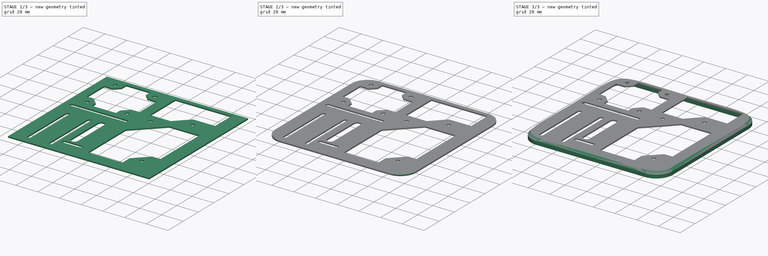
[diagram: build sequence overview — one tinted view per stage of 3, left to right]
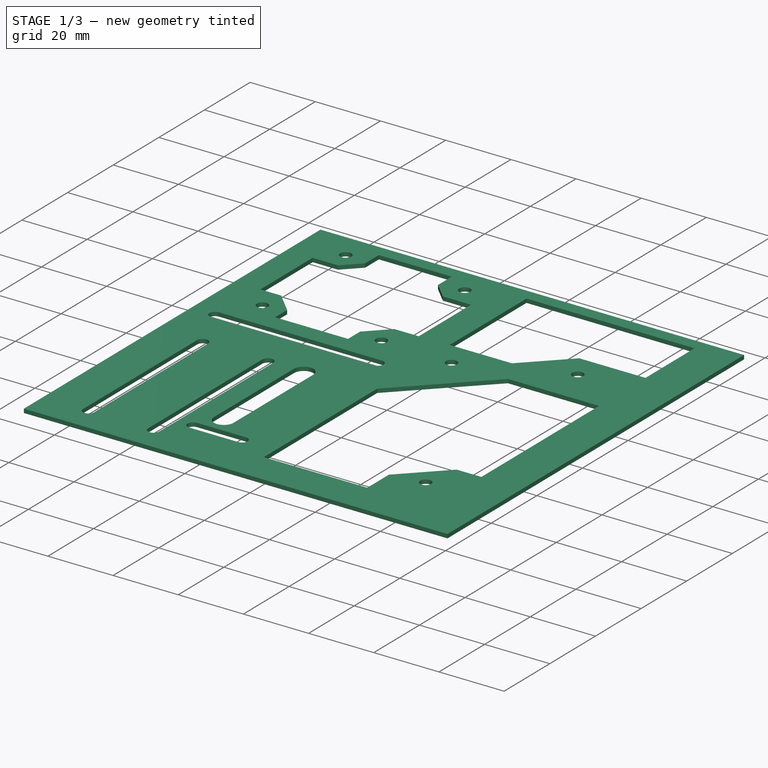
[diagram: stage 1 of 3 — iso view after this stage's code; geometry added in this stage tinted green]
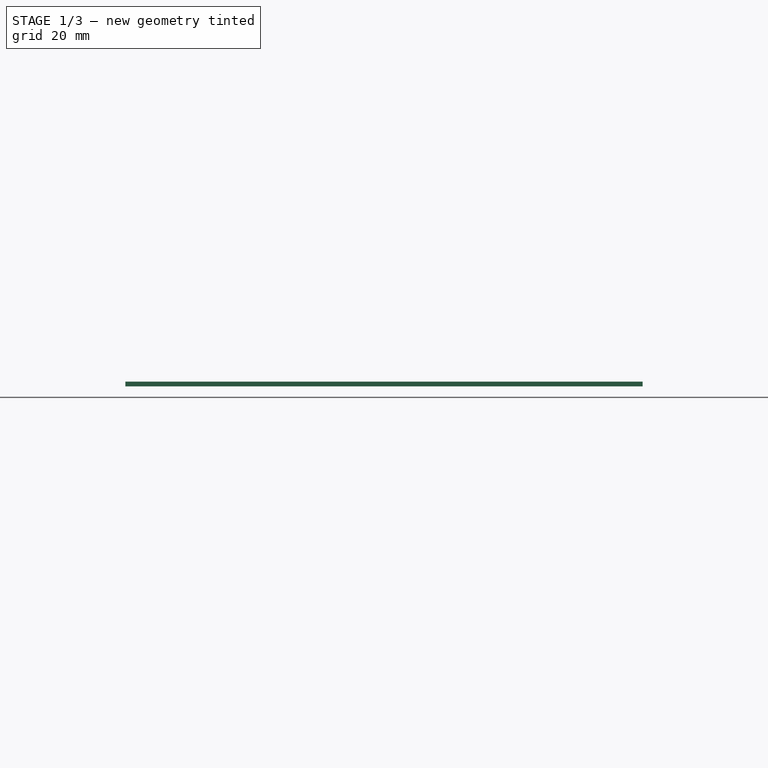
[diagram: stage 1 of 3 — front view after this stage's code; geometry added in this stage tinted green]
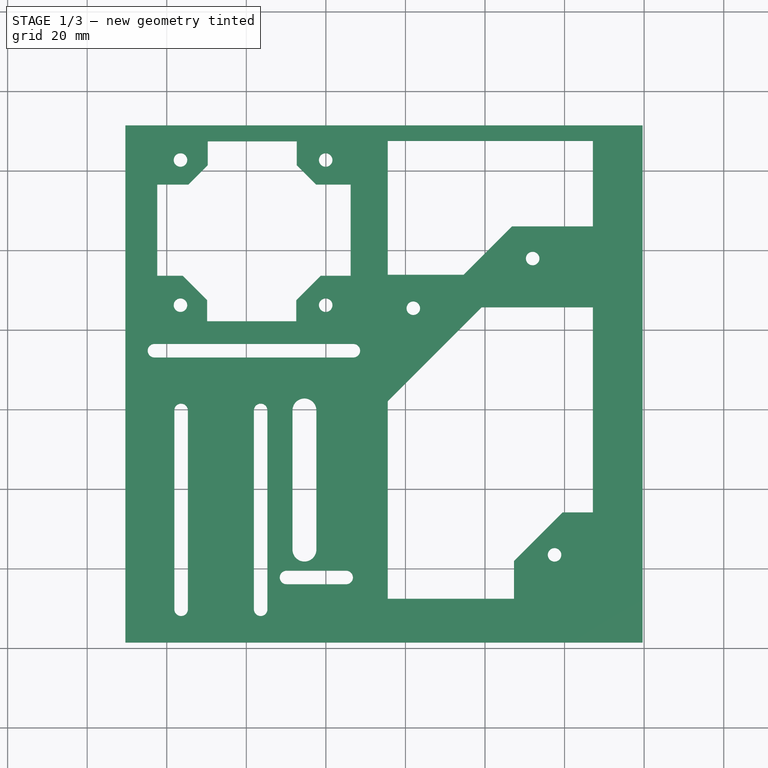
[diagram: stage 1 of 3 — top view after this stage's code; geometry added in this stage tinted green]
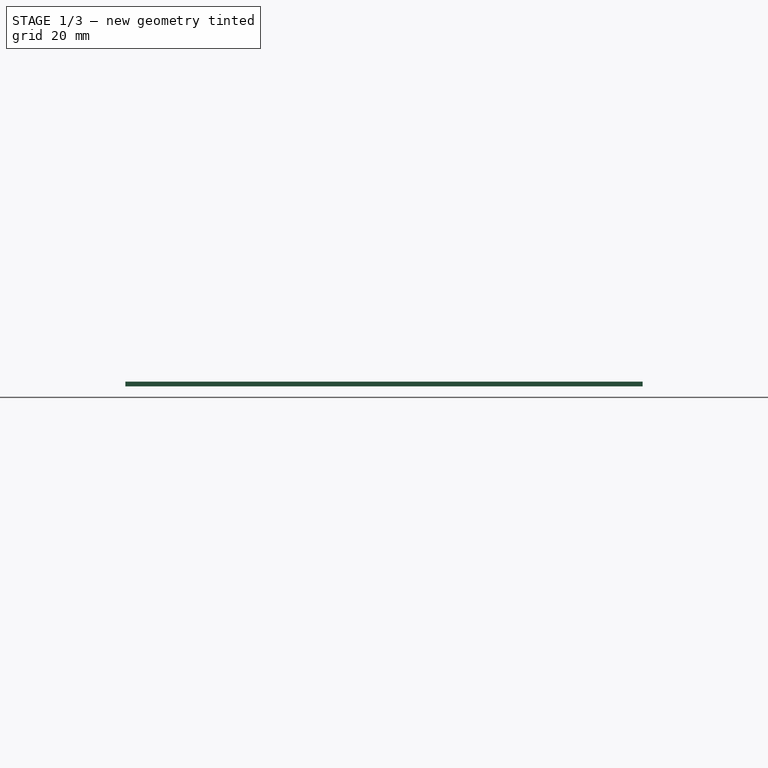
[diagram: stage 1 of 3 — right view after this stage's code; geometry added in this stage tinted green]
FCSTD DOCUMENT  (FreeCAD 0.18R4 (GitTag))
Label: pruebas_motor2
License: All rights reserved
LicenseURL: http://en.wikipedia.org/wiki/All_rights_reserved
objects: Sketcher::SketchObject×3, PartDesign::Pad×2, PartDesign::Pocket×1, PartDesign::Fillet×1, PartDesign::Chamfer×1, PartDesign::Body×1
note: 12 computed .brp shape members not serialized (recipe doc carries the construction recipe); baked Part::Feature solids carry a one-line shape summary decoded from their .brp

FEATURE [Sketcher::SketchObject] Sketch
  MapMode = 5
  Support = -> [XY_Plane]
  sketch-geometry (39):
    g0: LineSegment StartX=-50.3914 StartY=-78.5687 StartZ=0 EndX=79.6086 EndY=-78.5687 EndZ=0
    g1: LineSegment StartX=79.6086 StartY=-78.5687 StartZ=0 EndX=79.6086 EndY=51.4313 EndZ=0
    g2: LineSegment StartX=79.6086 StartY=51.4313 StartZ=0 EndX=-50.3914 EndY=51.4313 EndZ=0
    g3: LineSegment StartX=-50.3914 StartY=51.4313 StartZ=0 EndX=-50.3914 EndY=-78.5687 EndZ=0
    g4: LineSegment [constr] StartX=18.4771 StartY=46.9709 StartZ=0 EndX=73.4771 EndY=46.9709 EndZ=0
    g5: LineSegment [constr] StartX=73.4771 StartY=46.9709 StartZ=0 EndX=73.4771 EndY=-78.0291 EndZ=0
    g6: LineSegment [constr] StartX=73.4771 StartY=-78.0291 StartZ=0 EndX=18.4771 EndY=-78.0291 EndZ=0
    g7: LineSegment [constr] StartX=18.4771 StartY=-78.0291 StartZ=0 EndX=18.4771 EndY=46.9709 EndZ=0
    g8: LineSegment [constr] StartX=-36.5503 StartY=42.7361 StartZ=0 EndX=-0.0503191 EndY=42.7361 EndZ=0
    g9: LineSegment [constr] StartX=-0.0503191 StartY=42.7361 StartZ=0 EndX=-0.0503191 EndY=6.23607 EndZ=0
    g10: LineSegment [constr] StartX=-0.0503191 StartY=6.23607 StartZ=0 EndX=-36.5503 EndY=6.23607 EndZ=0
    g11: LineSegment [constr] StartX=-36.5503 StartY=6.23607 StartZ=0 EndX=-36.5503 EndY=42.7361 EndZ=0
    g12: Circle CenterX=-36.5503 CenterY=42.7361 CenterZ=0 NormalX=0 NormalY=0 NormalZ=1 AngleXU=0 Radius=1.7
    g13: Circle CenterX=-0.0503191 CenterY=6.23607 CenterZ=0 NormalX=0 NormalY=0 NormalZ=1 AngleXU=0 Radius=1.7
    g14: Circle CenterX=-0.0503191 CenterY=42.7361 CenterZ=0 NormalX=0 NormalY=0 NormalZ=1 AngleXU=0 Radius=1.7
    g15: Circle CenterX=-36.5503 CenterY=6.23607 CenterZ=0 NormalX=0 NormalY=0 NormalZ=1 AngleXU=0 Radius=1.7
    g16: Circle CenterX=21.9771 CenterY=5.47094 CenterZ=0 NormalX=0 NormalY=0 NormalZ=1 AngleXU=0 Radius=1.7
    g17: Circle CenterX=57.4771 CenterY=-56.5291 CenterZ=0 NormalX=0 NormalY=0 NormalZ=1 AngleXU=0 Radius=1.7
    g18: Circle CenterX=51.9771 CenterY=17.9709 CenterZ=0 NormalX=0 NormalY=0 NormalZ=1 AngleXU=0 Radius=1.7
    g19: ArcOfCircle CenterX=-5.39136 CenterY=-55.2085 CenterZ=0 NormalX=0 NormalY=0 NormalZ=1 AngleXU=0 Radius=3 StartAngle=3.14159 EndAngle=6.28319
    g20: LineSegment StartX=-8.39136 StartY=-20.2085 StartZ=0 EndX=-8.39136 EndY=-55.2085 EndZ=0
    g21: LineSegment StartX=-2.39136 StartY=-20.2085 StartZ=0 EndX=-2.39136 EndY=-55.2085 EndZ=0
    g22: ArcOfCircle CenterX=-9.89136 CenterY=-62.2085 CenterZ=0 NormalX=0 NormalY=0 NormalZ=1 AngleXU=0 Radius=1.7 StartAngle=1.5708 EndAngle=4.71239
    g23: ArcOfCircle CenterX=5.10864 CenterY=-62.2085 CenterZ=0 NormalX=0 NormalY=0 NormalZ=1 AngleXU=0 Radius=1.7 StartAngle=4.71239 EndAngle=7.85398
    g24: LineSegment StartX=-9.89136 StartY=-63.9085 StartZ=0 EndX=5.10864 EndY=-63.9085 EndZ=0
    g25: LineSegment StartX=-9.89136 StartY=-60.5085 StartZ=0 EndX=5.10864 EndY=-60.5085 EndZ=0
    g26: ArcOfCircle CenterX=-36.3914 CenterY=-20.2085 CenterZ=0 NormalX=0 NormalY=0 NormalZ=1 AngleXU=0 Radius=1.7 StartAngle=4e-16 EndAngle=3.14159
    g27: ArcOfCircle CenterX=-36.3914 CenterY=-70.2085 CenterZ=0 NormalX=0 NormalY=0 NormalZ=1 AngleXU=0 Radius=1.7 StartAngle=3.14159 EndAngle=6.28319
    g28: LineSegment StartX=-38.0914 StartY=-20.2085 StartZ=0 EndX=-38.0914 EndY=-70.2085 EndZ=0
    g29: LineSegment StartX=-34.6914 StartY=-20.2085 StartZ=0 EndX=-34.6914 EndY=-70.2085 EndZ=0
    g30: ArcOfCircle CenterX=-43.0914 CenterY=-5.20845 CenterZ=0 NormalX=0 NormalY=0 NormalZ=1 AngleXU=0 Radius=1.7 StartAngle=1.5708 EndAngle=4.71239
    g31: ArcOfCircle CenterX=6.90864 CenterY=-5.20845 CenterZ=0 NormalX=0 NormalY=0 NormalZ=1 AngleXU=0 Radius=1.7 StartAngle=4.71239 EndAngle=7.85398
    g32: LineSegment StartX=-43.0914 StartY=-6.90845 StartZ=0 EndX=6.90864 EndY=-6.90845 EndZ=0
    g33: LineSegment StartX=-43.0914 StartY=-3.50845 StartZ=0 EndX=6.90864 EndY=-3.50845 EndZ=0
    g34: ArcOfCircle CenterX=-5.39136 CenterY=-20.2085 CenterZ=0 NormalX=0 NormalY=0 NormalZ=1 AngleXU=0 Radius=3 StartAngle=-9e-16 EndAngle=3.14159
    g35: ArcOfCircle CenterX=-16.3914 CenterY=-20.2085 CenterZ=0 NormalX=0 NormalY=0 NormalZ=1 AngleXU=0 Radius=1.7 StartAngle=1e-15 EndAngle=3.14159
    g36: ArcOfCircle CenterX=-16.3914 CenterY=-70.2085 CenterZ=0 NormalX=0 NormalY=0 NormalZ=1 AngleXU=0 Radius=1.7 StartAngle=3.14159 EndAngle=6.28319
    g37: LineSegment StartX=-18.0914 StartY=-20.2085 StartZ=0 EndX=-18.0914 EndY=-70.2085 EndZ=0
    g38: LineSegment StartX=-14.6914 StartY=-20.2085 StartZ=0 EndX=-14.6914 EndY=-70.2085 EndZ=0
  constraints (94):
    c: Coincident(g0,g1)
    c: Coincident(g1,g2)
    c: Coincident(g2,g3)
    c: Coincident(g3,g0)
    c: Horizontal(g0)
    c: Horizontal(g2)
    c: Vertical(g1)
    c: Vertical(g3)
    c: Coincident(g4,g5)
    c: Coincident(g5,g6)
    c: Coincident(g6,g7)
    c: Coincident(g7,g4)
    c: Horizontal(g4)
    c: Horizontal(g6)
    c: Vertical(g5)
    c: Vertical(g7)
    c: Coincident(g8,g9)
    c: Coincident(g9,g10)
    c: Coincident(g10,g11)
    c: Coincident(g11,g8)
    c: Horizontal(g8)
    c: Horizontal(g10)
    c: Vertical(g9)
    c: Vertical(g11)
    c: Distance(g5) = 125
    c: Distance(g6) = 55
    c: Distance(g11) = 36.5
    c: Distance(g8) = 36.5
    c: Tangent(g20,g19) = -1.5708
    c: Tangent(g21,g19) = 1.5708
    c: Vertical(g20)
    c: Tangent(g22,g25) = 1.5708
    c: Tangent(g22,g24) = -1.5708
    c: Tangent(g24,g23) = -1.5708
    c: Tangent(g25,g23) = 1.5708
    c: Horizontal(g24)
    c: Equal(g22,g23)
    c: Tangent(g26,g29) = 1.5708
    c: Tangent(g26,g28) = -1.5708
    c: Tangent(g28,g27) = -1.5708
    c: Tangent(g29,g27) = 1.5708
    c: Vertical(g28)
    c: Equal(g26,g27)
    c: Tangent(g30,g33) = 1.5708
    c: Tangent(g30,g32) = -1.5708
    c: Tangent(g32,g31) = -1.5708
    c: Tangent(g33,g31) = 1.5708
    c: Horizontal(g32)
    c: Equal(g30,g31)
    c: Radius(g31) = 1.7
    c: Equal(g26,g23)
    c: Equal(g23,g17)
    c: Equal(g17,g18)
    c: Equal(g18,g16)
    c: Equal(g16,g13)
    c: Equal(g13,g15)
    c: Equal(g15,g14)
    c: Equal(g14,g12)
    c: Coincident(g15,g10)
    c: Coincident(g13,g9)
    c: Coincident(g14,g8)
    c: Coincident(g12,g8)
    c: Tangent(g20,g34) = -1.5708
    c: Tangent(g21,g34) = 1.5708
    c: Radius(g34) = 3
    c: Radius(g26) = 1.7
    c: DistanceX(g27,g19) = 31
    c: Horizontal(g34,g26)
    c: Tangent(g35,g38) = 1.5708
    c: Tangent(g35,g37) = -1.5708
    c: Tangent(g37,g36) = -1.5708
    c: Tangent(g38,g36) = 1.5708
    c: Equal(g35,g36)
    c: Equal(g26,g35) = 1.7
    c: Horizontal(g35,g26)
    c: Equal(g37,g29)
    c: Distance(g35,g26) = 20
    c: Symmetric(g22,g23,g21)
    c: DistanceY(g22,g19) = 7
    c: Distance(g37) = 50
    c: Distance(g21) = 35
    c: Distance(g25) = 15
    c: Distance(g32) = 50
    c: Symmetric(g31,g30,g37)
    c: DistanceY(g34,g31) = 15
    c: Distance(g1) = 130
    c: Distance(g2) = 130
    c: DistanceX(g18,g4) = 21.5
    c: DistanceY(g18,g4) = 29
    c: DistanceY(g16,g4) = 41.5
    c: DistanceX(g4,g16) = 3.5
    c: DistanceX(g17,g5) = 16
    c: DistanceY(g5,g17) = 21.5
    c: DistanceX(g0,g27) = 14
FEATURE [PartDesign::Pad] Pad
  Length = 1.2
  Length2 = 100
  Profile = -> Sketch
  Type = 0
FEATURE [Sketcher::SketchObject] Sketch001
  MapMode = 5
  Placement = pos=(0,0,1.2) rot=(0,0,1;0rad)
  Support = -> [Pad]
  sketch-geometry (30):
    g0: LineSegment StartX=15.5436 StartY=-17.8737 StartZ=0 EndX=15.5436 EndY=-67.564 EndZ=0
    g1: LineSegment StartX=15.5436 StartY=-67.564 StartZ=0 EndX=47.2911 EndY=-67.564 EndZ=0
    g2: LineSegment StartX=47.2911 StartY=-67.564 StartZ=0 EndX=47.2911 EndY=-58.0761 EndZ=0
    g3: LineSegment StartX=47.2911 StartY=-58.0761 StartZ=0 EndX=59.5096 EndY=-45.8576 EndZ=0
    g4: LineSegment StartX=67.1067 StartY=-45.8576 StartZ=0 EndX=67.1067 EndY=5.71053 EndZ=0
    g5: LineSegment StartX=67.1067 StartY=5.71053 StartZ=0 EndX=39.1278 EndY=5.71053 EndZ=0
    g6: LineSegment StartX=39.1278 StartY=5.71053 StartZ=0 EndX=15.5436 EndY=-17.8737 EndZ=0
    g7: LineSegment StartX=15.5436 StartY=13.8936 StartZ=0 EndX=34.6041 EndY=13.8936 EndZ=0
    g8: LineSegment StartX=34.6041 StartY=13.8936 StartZ=0 EndX=46.7648 EndY=26.0544 EndZ=0
    g9: LineSegment StartX=46.7648 StartY=26.0544 StartZ=0 EndX=67.1067 EndY=26.0544 EndZ=0
    g10: LineSegment StartX=67.1067 StartY=26.0544 StartZ=0 EndX=67.1067 EndY=47.5405 EndZ=0
    g11: LineSegment StartX=67.1067 StartY=47.5405 StartZ=0 EndX=15.5436 EndY=47.5405 EndZ=0
    g12: LineSegment StartX=15.5436 StartY=47.5405 StartZ=0 EndX=15.5436 EndY=13.8936 EndZ=0
    g13: LineSegment StartX=-42.3794 StartY=13.6448 StartZ=0 EndX=-36.019 EndY=13.6448 EndZ=0
    g14: LineSegment StartX=-36.019 StartY=13.6448 StartZ=0 EndX=-29.8522 EndY=7.47797 EndZ=0
    g15: LineSegment StartX=-29.8522 StartY=7.47797 StartZ=0 EndX=-29.8522 EndY=2.18866 EndZ=0
    g16: LineSegment StartX=-29.8522 StartY=2.18866 StartZ=0 EndX=-7.45365 EndY=2.18866 EndZ=0
    g17: LineSegment StartX=-7.45365 StartY=2.18866 StartZ=0 EndX=-7.45365 EndY=7.47797 EndZ=0
    g18: LineSegment StartX=-7.45365 StartY=7.47797 StartZ=0 EndX=-1.28683 EndY=13.6448 EndZ=0
    g19: LineSegment StartX=-1.28683 StartY=13.6448 StartZ=0 EndX=6.22902 EndY=13.6448 EndZ=0
    g20: LineSegment StartX=6.22902 StartY=13.6448 StartZ=0 EndX=6.22902 EndY=36.5553 EndZ=0
    g21: LineSegment StartX=6.22902 StartY=36.5553 StartZ=0 EndX=-2.4438 EndY=36.5553 EndZ=0
    g22: LineSegment StartX=-2.4438 StartY=36.5553 StartZ=0 EndX=-7.32422 EndY=41.4357 EndZ=0
    g23: LineSegment StartX=-7.32422 StartY=41.4357 StartZ=0 EndX=-7.32422 EndY=47.4482 EndZ=0
    g24: LineSegment StartX=-7.32422 StartY=47.4482 StartZ=0 EndX=-29.6958 EndY=47.4482 EndZ=0
    g25: LineSegment StartX=-29.6958 StartY=47.4482 StartZ=0 EndX=-29.6958 EndY=41.4357 EndZ=0
    g26: LineSegment StartX=-29.6958 StartY=41.4357 StartZ=0 EndX=-34.5762 EndY=36.5553 EndZ=0
    g27: LineSegment StartX=-34.5762 StartY=36.5553 StartZ=0 EndX=-42.3794 EndY=36.5553 EndZ=0
    g28: LineSegment StartX=-42.3794 StartY=36.5553 StartZ=0 EndX=-42.3794 EndY=13.6448 EndZ=0
    g29: LineSegment StartX=59.5096 StartY=-45.8576 StartZ=0 EndX=67.1067 EndY=-45.8576 EndZ=0
  constraints (66):
    c: Coincident(g0,g1)
    c: Coincident(g1,g2)
    c: Coincident(g2,g3)
    c: Coincident(g4,g5)
    c: Coincident(g5,g6)
    c: Coincident(g6,g0)
    c: Coincident(g7,g8)
    c: Coincident(g8,g9)
    c: Coincident(g9,g10)
    c: Coincident(g10,g11)
    c: Coincident(g11,g12)
    c: Coincident(g12,g7)
    c: Vertical(g12)
    c: Vertical(g0)
    c: Vertical(g4)
    c: Vertical(g2)
    c: Vertical(g10)
    c: Horizontal(g11)
    c: Horizontal(g9)
    c: Horizontal(g5)
    c: Horizontal(g1)
    c: Parallel(g8,g6)
    c: Parallel(g6,g3)
    c: Angle(g-1,g6) = 0.785398
    c: Horizontal(g7)
    c: Vertical(g0,g7)
    c: Vertical(g4,g9)
    c: Coincident(g13,g14)
    c: Coincident(g14,g15)
    c: Coincident(g15,g16)
    c: Coincident(g16,g17)
    c: Coincident(g17,g18)
    c: Coincident(g18,g19)
    c: Coincident(g19,g20)
    c: Coincident(g20,g21)
    c: Coincident(g21,g22)
    c: Coincident(g22,g23)
    c: Coincident(g23,g24)
    c: Coincident(g24,g25)
    c: Coincident(g25,g26)
    c: Coincident(g26,g27)
    c: Coincident(g27,g28)
    c: Coincident(g28,g13)
    c: Vertical(g20)
    c: Vertical(g28)
    c: Vertical(g25)
    c: Vertical(g23)
    c: Vertical(g17)
    c: Vertical(g15)
    c: Horizontal(g16)
    c: Horizontal(g19)
    c: Horizontal(g13)
    c: Horizontal(g27)
    c: Horizontal(g24)
    c: Horizontal(g21)
    c: Parallel(g26,g18)
    c: Parallel(g18,g6)
    c: Parallel(g22,g14)
    c: Perpendicular(g18,g14)
    c: Horizontal(g14,g17)
    c: Horizontal(g22,g25)
    c: Horizontal(g26,g21)
    c: Horizontal(g18,g13)
    c: Coincident(g29,g3)
    c: Horizontal(g29)
    c: Coincident(g29,g4)
FEATURE [PartDesign::Pocket] Pocket
  BaseFeature = -> Pad
  Length = 5
  Length2 = 100
  Profile = -> Sketch001
  Type = 0
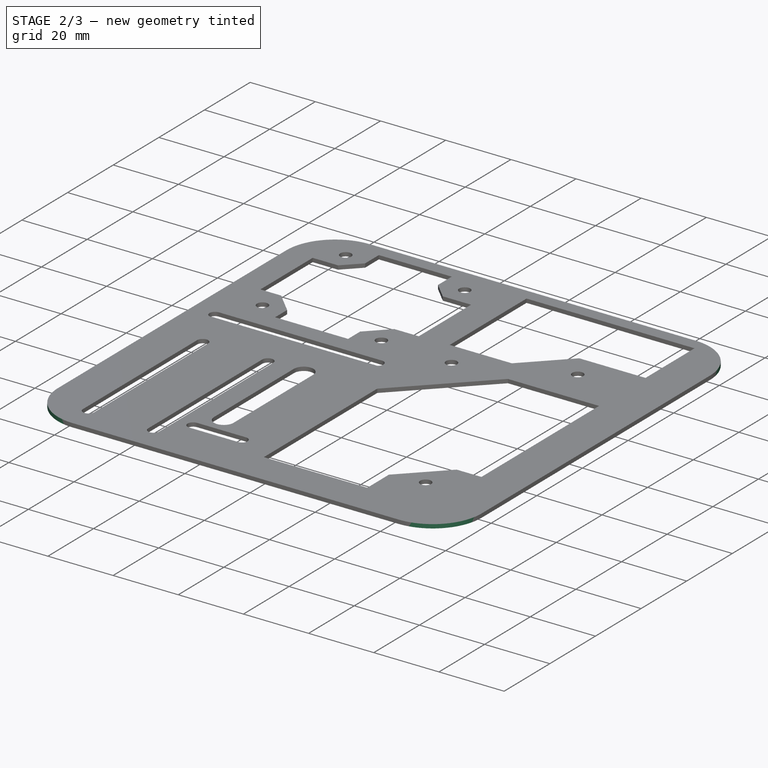
[diagram: stage 2 of 3 — iso view after this stage's code; geometry added in this stage tinted green]
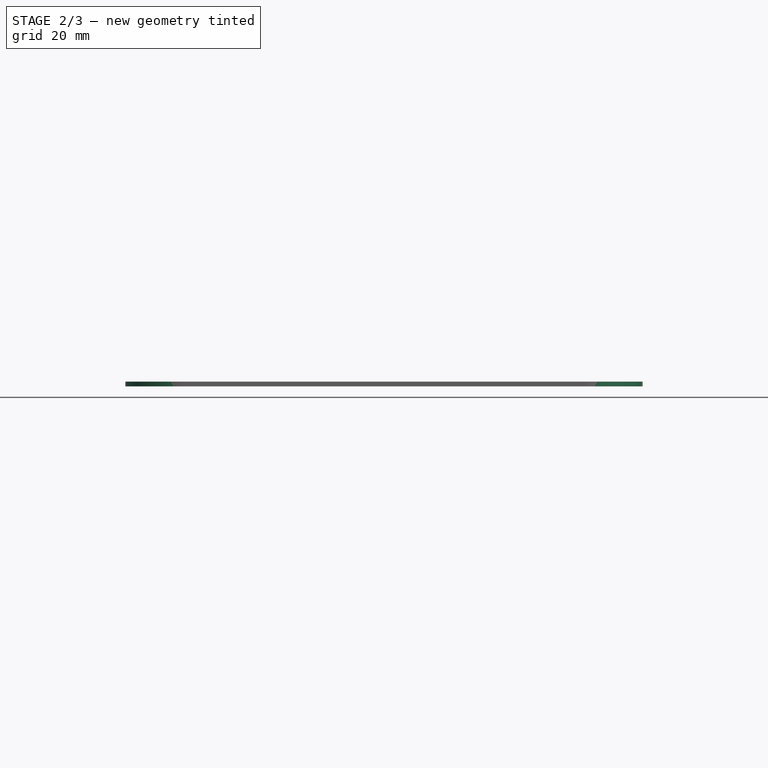
[diagram: stage 2 of 3 — front view after this stage's code; geometry added in this stage tinted green]
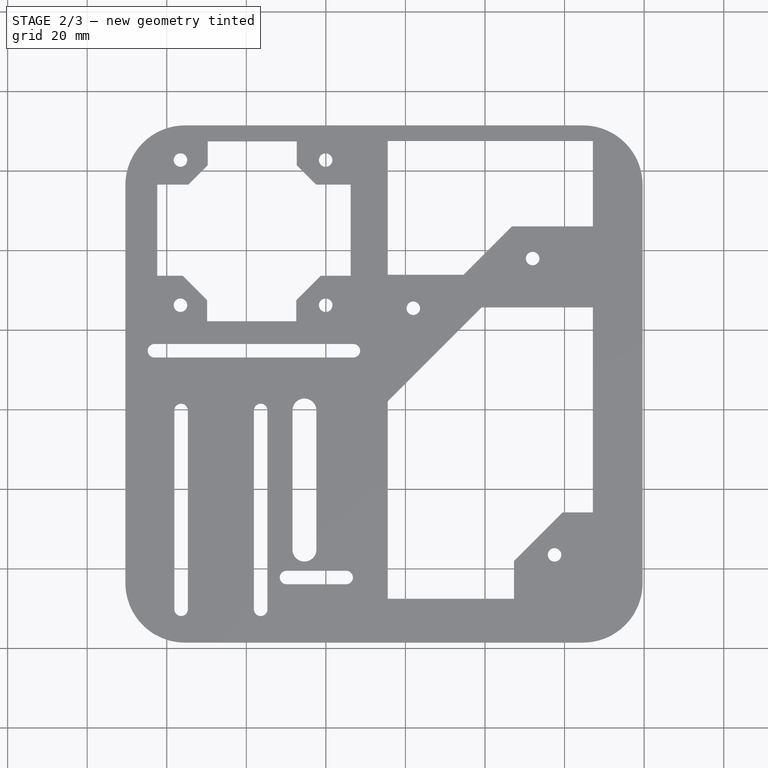
[diagram: stage 2 of 3 — top view after this stage's code; geometry added in this stage tinted green]
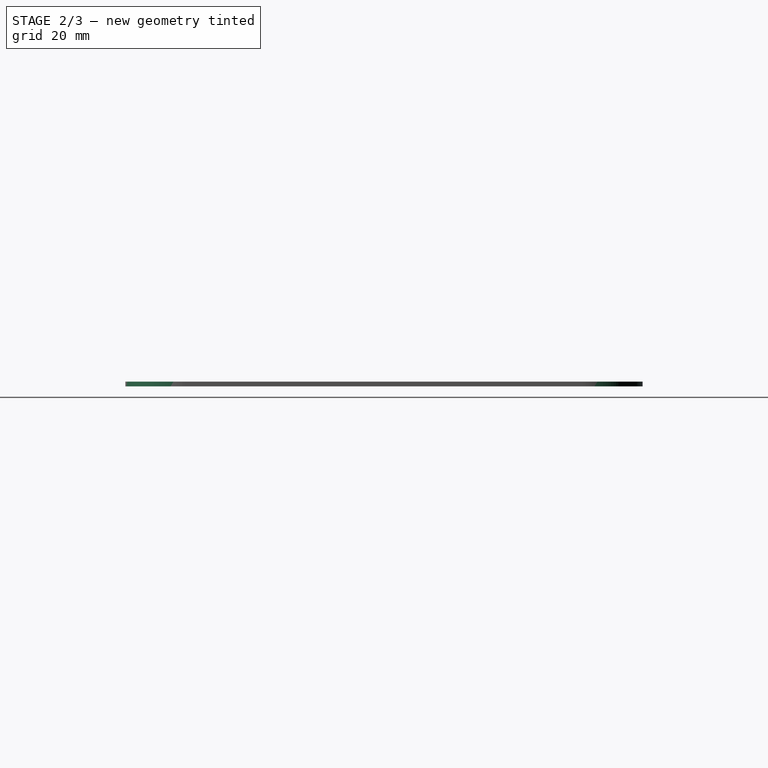
[diagram: stage 2 of 3 — right view after this stage's code; geometry added in this stage tinted green]
FEATURE [PartDesign::Fillet] Fillet
  Base = -> Pocket [Edge1,Edge2,Edge8,Edge5]
  BaseFeature = -> Pocket
  Radius = 15
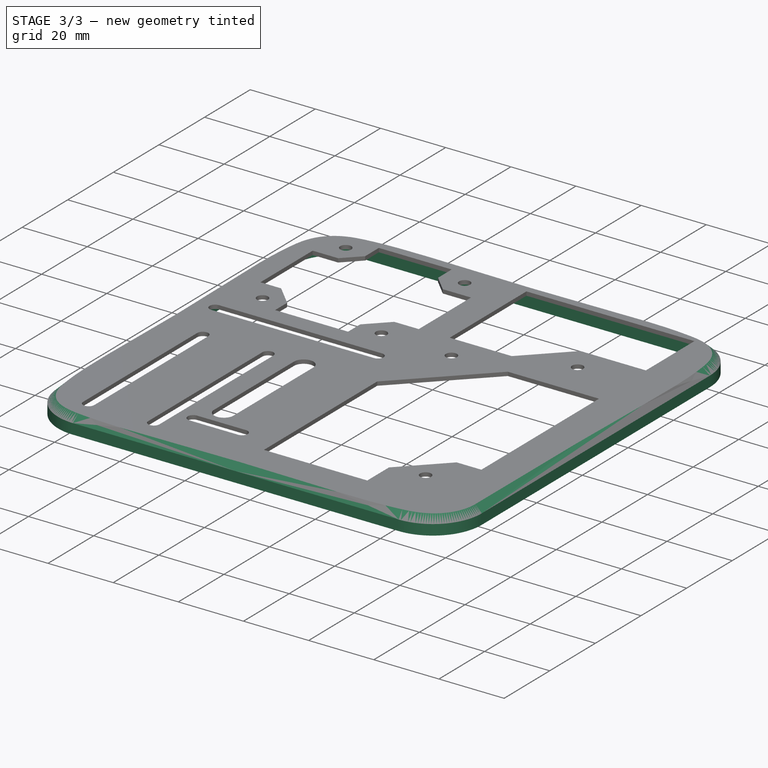
[diagram: stage 3 of 3 — iso view after this stage's code; geometry added in this stage tinted green]
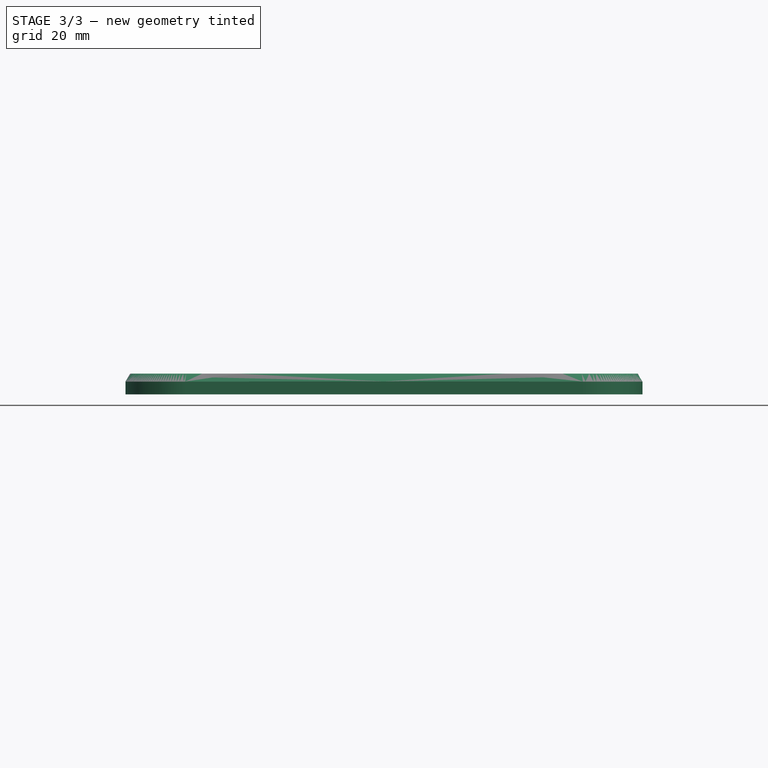
[diagram: stage 3 of 3 — front view after this stage's code; geometry added in this stage tinted green]
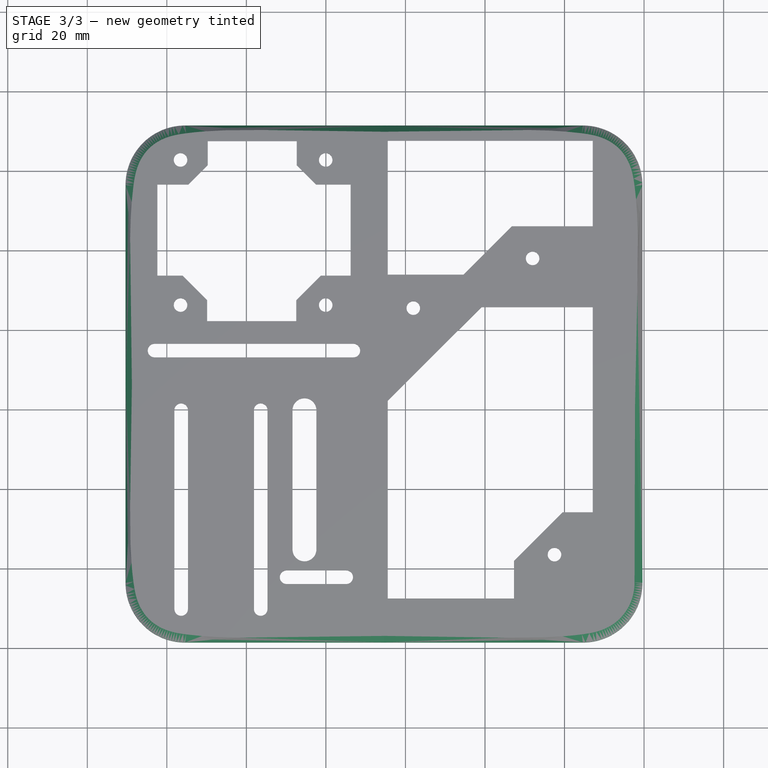
[diagram: stage 3 of 3 — top view after this stage's code; geometry added in this stage tinted green]
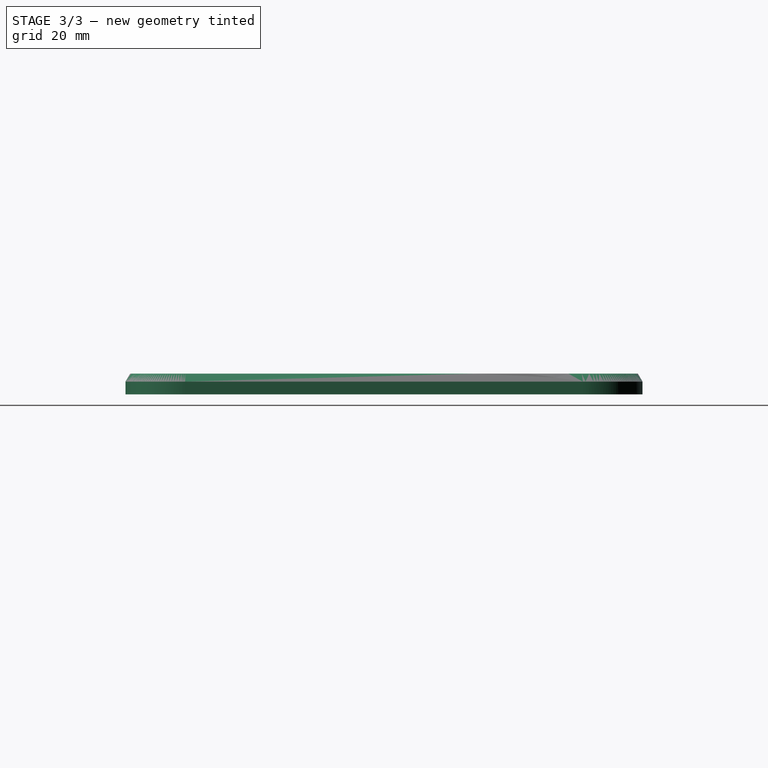
[diagram: stage 3 of 3 — right view after this stage's code; geometry added in this stage tinted green]
FEATURE [Sketcher::SketchObject] Sketch002
  ExternalGeometry = -> [Fillet]
  MapMode = 5
  Placement = pos=(0,0,0) rot=(1,0,0;3.14159rad)
  Support = -> [Fillet]
  sketch-geometry (16):
    g0: LineSegment StartX=64.6086 StartY=-51.4313 StartZ=0 EndX=-35.3914 EndY=-51.4313 EndZ=0
    g1: LineSegment StartX=-50.3914 StartY=-36.4313 StartZ=0 EndX=-50.3914 EndY=63.5687 EndZ=0
    g2: LineSegment StartX=-35.3914 StartY=78.5687 StartZ=0 EndX=64.6086 EndY=78.5687 EndZ=0
    g3: LineSegment StartX=79.6086 StartY=63.5687 StartZ=0 EndX=79.6086 EndY=-36.4313 EndZ=0
    g4: ArcOfCircle CenterX=64.6086 CenterY=63.5687 CenterZ=0 NormalX=0 NormalY=0 NormalZ=1 AngleXU=0 Radius=15 StartAngle=0 EndAngle=1.5708
    g5: ArcOfCircle CenterX=-35.3914 CenterY=63.5687 CenterZ=0 NormalX=0 NormalY=0 NormalZ=1 AngleXU=0 Radius=15 StartAngle=1.5708 EndAngle=3.14159
    g6: ArcOfCircle CenterX=-35.3914 CenterY=-36.4313 CenterZ=0 NormalX=0 NormalY=0 NormalZ=1 AngleXU=0 Radius=15 StartAngle=3.14159 EndAngle=4.71239
    g7: ArcOfCircle CenterX=64.6086 CenterY=-36.4313 CenterZ=0 NormalX=0 NormalY=0 NormalZ=1 AngleXU=0 Radius=15 StartAngle=4.71239 EndAngle=6.28319
    g8: LineSegment StartX=-35.3914 StartY=76.0687 StartZ=0 EndX=64.6086 EndY=76.0687 EndZ=0
    g9: LineSegment StartX=77.1086 StartY=63.5687 StartZ=0 EndX=77.1086 EndY=-36.4313 EndZ=0
    g10: LineSegment StartX=64.6086 StartY=-48.9313 StartZ=0 EndX=-35.3914 EndY=-48.9313 EndZ=0
    g11: LineSegment StartX=-47.8914 StartY=-36.4313 StartZ=0 EndX=-47.8914 EndY=63.5687 EndZ=0
    g12: ArcOfCircle CenterX=64.6086 CenterY=-36.4313 CenterZ=0 NormalX=0 NormalY=0 NormalZ=1 AngleXU=0 Radius=12.5 StartAngle=4.71239 EndAngle=6.28319
    g13: ArcOfCircle CenterX=64.6086 CenterY=63.5687 CenterZ=0 NormalX=0 NormalY=0 NormalZ=1 AngleXU=0 Radius=12.5 StartAngle=1e-16 EndAngle=1.5708
    g14: ArcOfCircle CenterX=-35.3914 CenterY=63.5687 CenterZ=0 NormalX=0 NormalY=0 NormalZ=1 AngleXU=0 Radius=12.5 StartAngle=1.5708 EndAngle=3.14159
    g15: ArcOfCircle CenterX=-35.3914 CenterY=-36.4313 CenterZ=0 NormalX=0 NormalY=0 NormalZ=1 AngleXU=0 Radius=12.5 StartAngle=3.14159 EndAngle=4.71239
  constraints (32):
    c: Vertical(g1)
    c: Vertical(g3)
    c: Tangent(g3,g4) = 1.5708
    c: Tangent(g2,g5) = 1.5708
    c: Tangent(g1,g5) = 1.5708
    c: Tangent(g1,g6) = 1.5708
    c: Tangent(g0,g6) = 1.5708
    c: Tangent(g0,g7) = 1.5708
    c: Tangent(g3,g7) = 1.5708
    c: Coincident(g0,g-4)
    c: Equal(g2,g3)
    c: Equal(g2,g1)
    c: Coincident(g2,g-3)
    c: Coincident(g0,g-4)
    c: Tangent(g2,g4) = 1.5708
    c: Coincident(g2,g-3)
    c: Horizontal(g8)
    c: Horizontal(g10)
    c: Vertical(g9)
    c: Tangent(g10,g12) = 1.5708
    c: Tangent(g9,g12) = 1.5708
    c: Tangent(g9,g13) = 1.5708
    c: Tangent(g8,g13) = 1.5708
    c: Tangent(g8,g14) = 1.5708
    c: Tangent(g11,g14) = 1.5708
    c: Tangent(g11,g15) = 1.5708
    c: Tangent(g10,g15) = 1.5708
    c: Coincident(g12,g7)
    c: Coincident(g4,g13)
    c: Coincident(g14,g5)
    c: Coincident(g6,g15)
    c: DistanceX(g1,g11) = 2.5
FEATURE [PartDesign::Pad] Pad001
  BaseFeature = -> Fillet
  Length = 4
  Length2 = 100
  Profile = -> Sketch002
  Type = 0
FEATURE [PartDesign::Chamfer] Chamfer
  Base = -> Pad001 [Edge15]
  BaseFeature = -> Pad001
  Size = 2
FEATURE [PartDesign::Body] Body
  Group = -> [Sketch,Pad,Sketch001,Pocket,Fillet,Sketch002,Pad001,Chamfer]
  Origin = -> Origin
  Tip = -> Chamfer
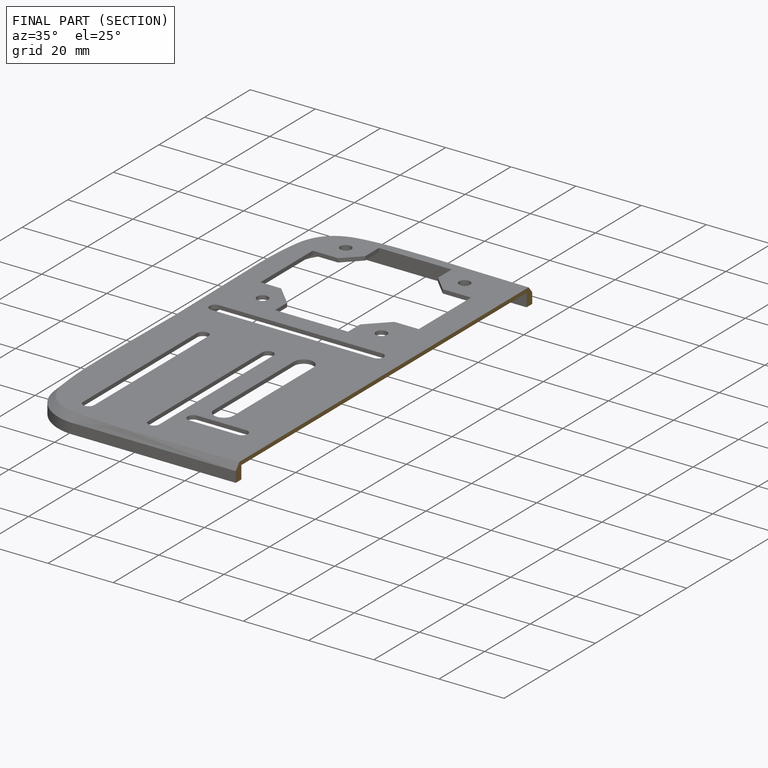
[diagram: finished part — half-section view (interior)]
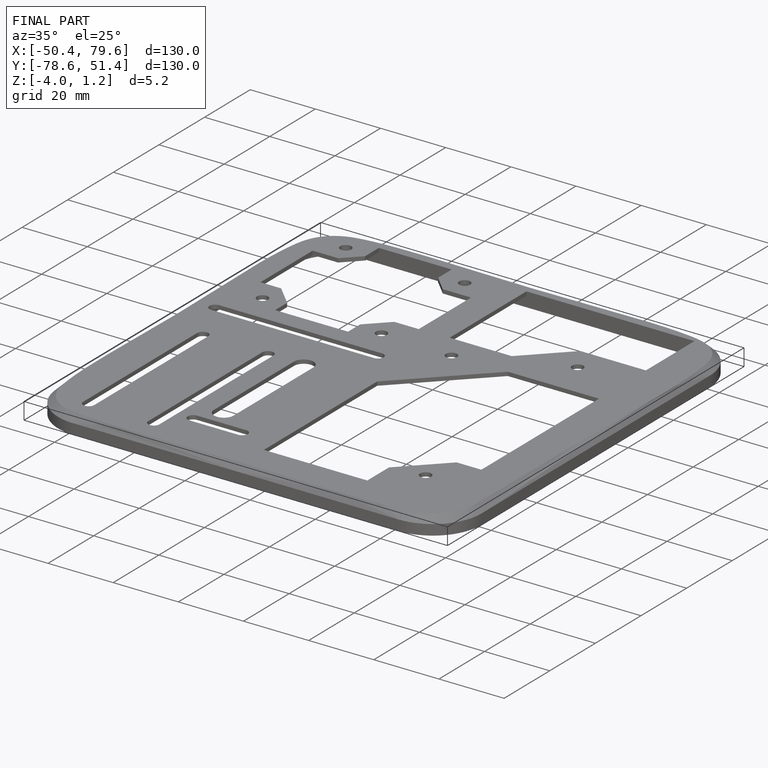
[diagram: finished part — iso view with bounding-box wireframe]
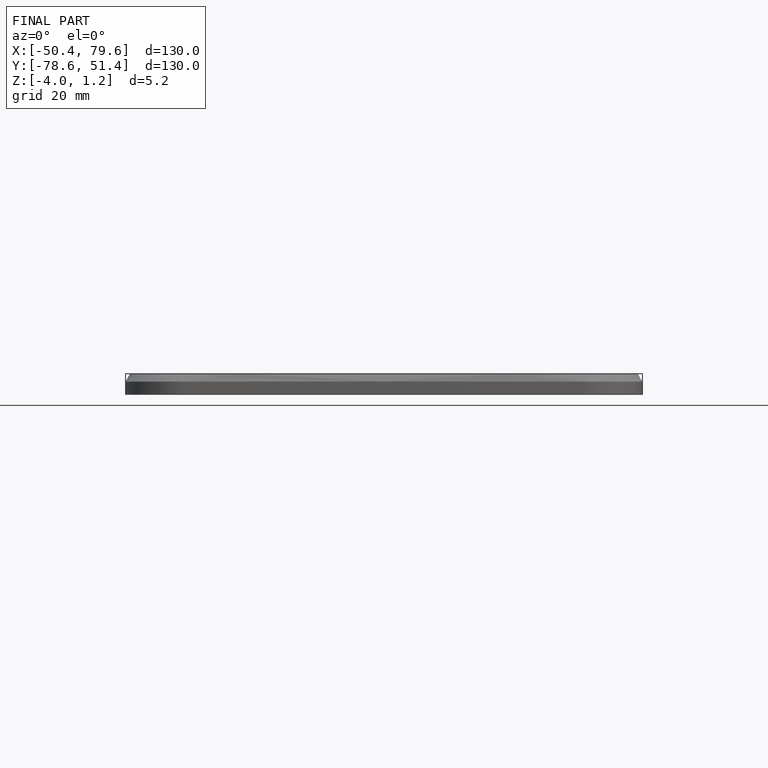
[diagram: finished part — front view with bounding-box wireframe]
